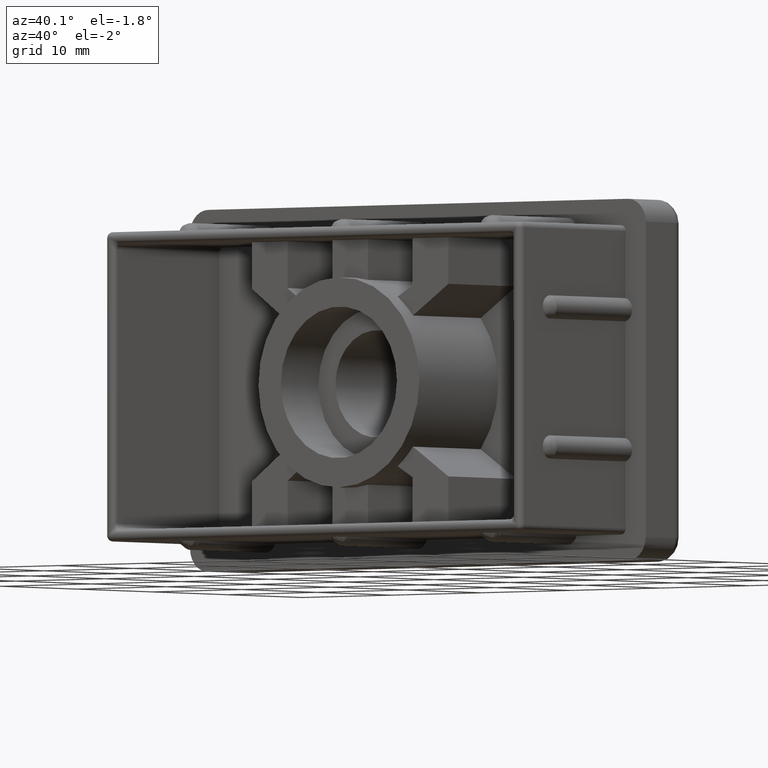
[diagram: clean part render]
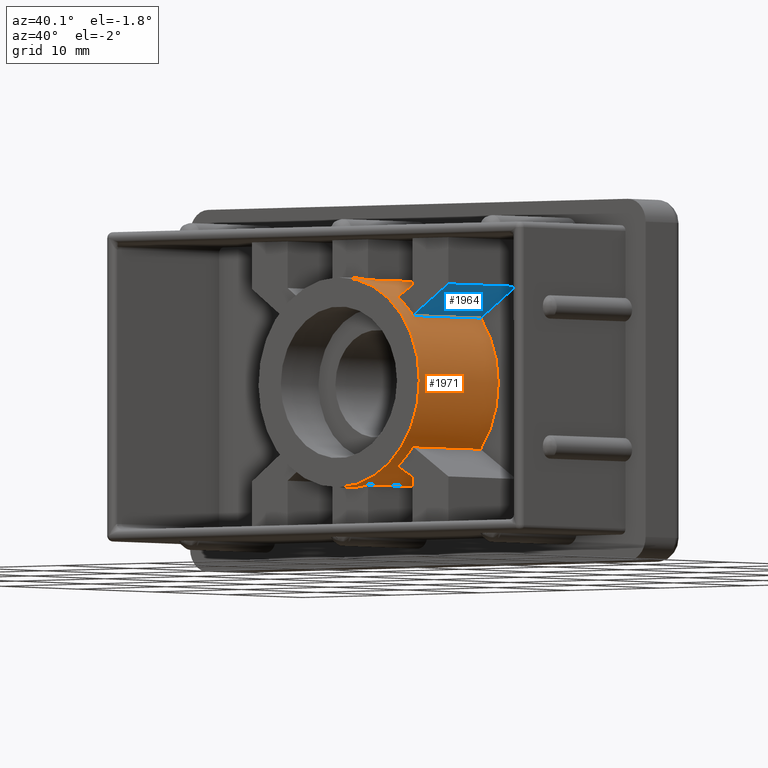
[diagram: same view with the hole feature highlighted: cylindrical wall and planar end face, labeled with their STEP entity ids]
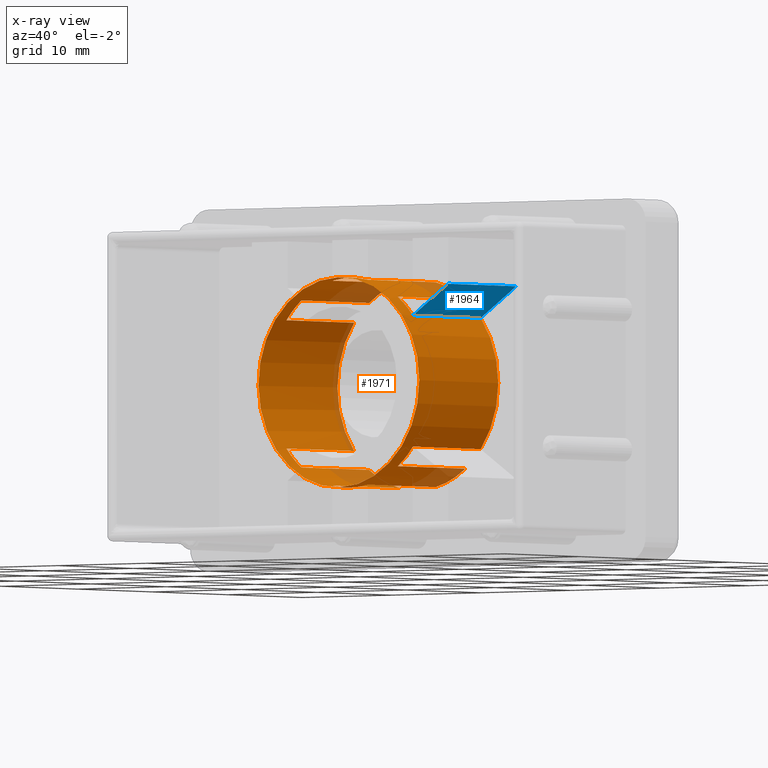
[diagram: x-ray of the same camera — body ghosted, the hole faces saturated]
A machine part, auxiliary view. The highlighted faces form one hole feature of diameter 18 mm: the cylindrical wall (entity #1971, orange) and its adjacent planar end face (entity #1964, blue) — they share a circular edge in the B-rep.
The next image is the same camera in x-ray (body ghosted, the hole faces saturated) — the bore reads through the body.
Wall:
#20=FACE_BOUND('',#726,.T.);
#252=LINE('',#3997,#428);
#254=LINE('',#4001,#430);
#256=LINE('',#4005,#432);
#259=LINE('',#4012,#435);
#266=LINE('',#4028,#442);
#273=LINE('',#4042,#449);
#281=LINE('',#4063,#457);
#284=LINE('',#4069,#460);
#287=LINE('',#4077,#463);
#291=LINE('',#4085,#467);
#297=LINE('',#4098,#473);
#301=LINE('',#4107,#477);
#428=VECTOR('',#2514,9.);
#430=VECTOR('',#2518,9.);
#432=VECTOR('',#2522,9.);
#435=VECTOR('',#2527,9.);
#442=VECTOR('',#2544,9.);
#449=VECTOR('',#2553,9.);
#457=VECTOR('',#2579,9.);
#460=VECTOR('',#2584,9.);
#463=VECTOR('',#2593,9.);
#467=VECTOR('',#2599,9.);
#473=VECTOR('',#2615,9.);
#477=VECTOR('',#2621,9.);
#514=CYLINDRICAL_SURFACE('',#2138,9.);
#615=FACE_OUTER_BOUND('',#725,.T.);
#725=EDGE_LOOP('',(#1825,#1826,#1827,#1828,#1829,#1830,#1831,#1832,#1833,
#1834,#1835,#1836,#1837,#1838,#1839,#1840,#1841,#1842,#1843,#1844,#1845,
#1846,#1847,#1848));
#726=EDGE_LOOP('',(#1849));
#763=CIRCLE('',#2036,9.);
#798=CIRCLE('',#2099,9.);
#799=CIRCLE('',#2105,9.);
#800=CIRCLE('',#2111,9.);
#801=CIRCLE('',#2115,9.);
#802=CIRCLE('',#2117,9.);
#803=CIRCLE('',#2121,9.);
#804=CIRCLE('',#2125,9.);
#805=CIRCLE('',#2131,9.);
#806=CIRCLE('',#2135,9.);
#807=CIRCLE('',#2137,9.);
#808=CIRCLE('',#2139,9.);
#809=CIRCLE('',#2140,9.);
#916=VERTEX_POINT('',#3194);
#917=VERTEX_POINT('',#3196);
#965=VERTEX_POINT('',#3990);
#966=VERTEX_POINT('',#3991);
#967=VERTEX_POINT('',#3996);
#968=VERTEX_POINT('',#4000);
#969=VERTEX_POINT('',#4004);
#971=VERTEX_POINT('',#4010);
#972=VERTEX_POINT('',#4011);
#975=VERTEX_POINT('',#4026);
#976=VERTEX_POINT('',#4027);
#980=VERTEX_POINT('',#4036);
#982=VERTEX_POINT('',#4040);
#984=VERTEX_POINT('',#4055);
#985=VERTEX_POINT('',#4061);
#986=VERTEX_POINT('',#4062);
#987=VERTEX_POINT('',#4067);
#988=VERTEX_POINT('',#4068);
#989=VERTEX_POINT('',#4075);
#990=VERTEX_POINT('',#4076);
#993=VERTEX_POINT('',#4084);
#995=VERTEX_POINT('',#4097);
#997=VERTEX_POINT('',#4103);
#999=VERTEX_POINT('',#4106);
#1001=VERTEX_POINT('',#4124);
#1135=EDGE_CURVE('',#917,#916,#763,.T.);
#1221=EDGE_CURVE('',#965,#966,#798,.T.);
#1224=EDGE_CURVE('',#967,#965,#252,.T.);
#1226=EDGE_CURVE('',#966,#968,#254,.T.);
#1228=EDGE_CURVE('',#916,#969,#256,.T.);
#1231=EDGE_CURVE('',#971,#972,#259,.T.);
#1235=EDGE_CURVE('',#969,#971,#799,.T.);
#1239=EDGE_CURVE('',#975,#976,#266,.T.);
#1246=EDGE_CURVE('',#980,#982,#273,.T.);
#1247=EDGE_CURVE('',#982,#975,#800,.T.);
#1255=EDGE_CURVE('',#976,#984,#801,.T.);
#1256=EDGE_CURVE('',#972,#967,#802,.T.);
#1257=EDGE_CURVE('',#985,#986,#281,.T.);
#1260=EDGE_CURVE('',#987,#988,#284,.T.);
#1263=EDGE_CURVE('',#986,#987,#803,.T.);
#1264=EDGE_CURVE('',#989,#990,#287,.T.);
#1268=EDGE_CURVE('',#993,#917,#291,.T.);
#1271=EDGE_CURVE('',#990,#993,#804,.T.);
#1275=EDGE_CURVE('',#984,#995,#297,.T.);
#1279=EDGE_CURVE('',#999,#997,#301,.T.);
#1282=EDGE_CURVE('',#995,#999,#805,.T.);
#1286=EDGE_CURVE('',#968,#980,#806,.T.);
#1287=EDGE_CURVE('',#988,#989,#807,.T.);
#1288=EDGE_CURVE('',#997,#985,#808,.T.);
#1289=EDGE_CURVE('',#1001,#1001,#809,.T.);
#1825=ORIENTED_EDGE('',*,*,#1226,.T.);
#1826=ORIENTED_EDGE('',*,*,#1286,.T.);
#1827=ORIENTED_EDGE('',*,*,#1246,.T.);
#1828=ORIENTED_EDGE('',*,*,#1247,.T.);
#1829=ORIENTED_EDGE('',*,*,#1239,.T.);
#1830=ORIENTED_EDGE('',*,*,#1255,.T.);
#1831=ORIENTED_EDGE('',*,*,#1275,.T.);
#1832=ORIENTED_EDGE('',*,*,#1282,.T.);
#1833=ORIENTED_EDGE('',*,*,#1279,.T.);
#1834=ORIENTED_EDGE('',*,*,#1288,.T.);
#1835=ORIENTED_EDGE('',*,*,#1257,.T.);
#1836=ORIENTED_EDGE('',*,*,#1263,.T.);
#1837=ORIENTED_EDGE('',*,*,#1260,.T.);
#1838=ORIENTED_EDGE('',*,*,#1287,.T.);
#1839=ORIENTED_EDGE('',*,*,#1264,.T.);
#1840=ORIENTED_EDGE('',*,*,#1271,.T.);
#1841=ORIENTED_EDGE('',*,*,#1268,.T.);
#1842=ORIENTED_EDGE('',*,*,#1135,.T.);
#1843=ORIENTED_EDGE('',*,*,#1228,.T.);
#1844=ORIENTED_EDGE('',*,*,#1235,.T.);
#1845=ORIENTED_EDGE('',*,*,#1231,.T.);
#1846=ORIENTED_EDGE('',*,*,#1256,.T.);
#1847=ORIENTED_EDGE('',*,*,#1224,.T.);
#1848=ORIENTED_EDGE('',*,*,#1221,.T.);
#1849=ORIENTED_EDGE('',*,*,#1289,.T.);
#1971=ADVANCED_FACE('',(#615,#20),#514,.T.);
#2036=AXIS2_PLACEMENT_3D('',#3197,#2347,#2348);
#2099=AXIS2_PLACEMENT_3D('',#3992,#2508,#2509);
#2105=AXIS2_PLACEMENT_3D('',#4019,#2533,#2534);
#2111=AXIS2_PLACEMENT_3D('',#4044,#2556,#2557);
#2115=AXIS2_PLACEMENT_3D('',#4057,#2571,#2572);
#2117=AXIS2_PLACEMENT_3D('',#4059,#2575,#2576);
#2121=AXIS2_PLACEMENT_3D('',#4073,#2589,#2590);
#2125=AXIS2_PLACEMENT_3D('',#4090,#2604,#2605);
#2131=AXIS2_PLACEMENT_3D('',#4112,#2626,#2627);
#2135=AXIS2_PLACEMENT_3D('',#4119,#2637,#2638);
#2137=AXIS2_PLACEMENT_3D('',#4121,#2641,#2642);
#2138=AXIS2_PLACEMENT_3D('',#4122,#2643,#2644);
#2139=AXIS2_PLACEMENT_3D('',#4123,#2645,#2646);
#2140=AXIS2_PLACEMENT_3D('',#4125,#2647,#2648);
#2347=DIRECTION('center_axis',(0.,-1.,0.));
#2348=DIRECTION('ref_axis',(-1.,0.,0.));
#2508=DIRECTION('center_axis',(0.,-1.,0.));
#2509=DIRECTION('ref_axis',(-1.,0.,0.));
#2514=DIRECTION('',(0.,-1.,0.));
#2518=DIRECTION('',(0.,1.,0.));
#2522=DIRECTION('',(0.,-1.,0.));
#2527=DIRECTION('',(0.,1.,0.));
#2533=DIRECTION('center_axis',(0.,-1.,0.));
#2534=DIRECTION('ref_axis',(-1.,0.,0.));
#2544=DIRECTION('',(0.,1.,0.));
#2553=DIRECTION('',(0.,-1.,0.));
#2556=DIRECTION('center_axis',(0.,-1.,0.));
#2557=DIRECTION('ref_axis',(-1.,0.,0.));
#2571=DIRECTION('center_axis',(0.,-1.,0.));
#2572=DIRECTION('ref_axis',(-1.,0.,0.));
#2575=DIRECTION('center_axis',(0.,-1.,0.));
#2576=DIRECTION('ref_axis',(-1.,0.,0.));
#2579=DIRECTION('',(0.,-1.,0.));
#2584=DIRECTION('',(0.,1.,0.));
#2589=DIRECTION('center_axis',(0.,-1.,0.));
#2590=DIRECTION('ref_axis',(-1.,0.,0.));
#2593=DIRECTION('',(0.,-1.,0.));
#2599=DIRECTION('',(0.,1.,0.));
#2604=DIRECTION('center_axis',(0.,-1.,0.));
#2605=DIRECTION('ref_axis',(-1.,0.,0.));
#2615=DIRECTION('',(0.,-1.,0.));
#2621=DIRECTION('',(0.,1.,0.));
#2626=DIRECTION('center_axis',(0.,-1.,0.));
#2627=DIRECTION('ref_axis',(-1.,0.,0.));
#2637=DIRECTION('center_axis',(0.,-1.,0.));
#2638=DIRECTION('ref_axis',(-1.,0.,0.));
#2641=DIRECTION('center_axis',(0.,-1.,0.));
#2642=DIRECTION('ref_axis',(-1.,0.,0.));
#2643=DIRECTION('center_axis',(0.,1.,0.));
#2644=DIRECTION('ref_axis',(-1.,0.,0.));
#2645=DIRECTION('center_axis',(0.,-1.,0.));
#2646=DIRECTION('ref_axis',(-1.,0.,0.));
#2647=DIRECTION('center_axis',(0.,1.,0.));
#2648=DIRECTION('ref_axis',(-1.,0.,0.));
#3194=CARTESIAN_POINT('',(16.1208311818235,14.,-18.743173214267));
#3196=CARTESIAN_POINT('',(16.1208311818235,14.,-7.75682678573301));
#3197=CARTESIAN_POINT('Origin',(23.25,14.,-13.25));
#3990=CARTESIAN_POINT('',(21.25,5.,-22.0249643873921));
#3991=CARTESIAN_POINT('',(25.25,5.,-22.0249643873921));
#3992=CARTESIAN_POINT('Origin',(23.25,5.,-13.25));
#3996=CARTESIAN_POINT('',(21.25,14.,-22.0249643873921));
#3997=CARTESIAN_POINT('',(21.25,0.,-22.0249643873921));
#4000=CARTESIAN_POINT('',(25.25,14.,-22.0249643873921));
#4001=CARTESIAN_POINT('',(25.25,0.,-22.0249643873921));
#4004=CARTESIAN_POINT('',(16.1208311818235,5.,-18.743173214267));
#4005=CARTESIAN_POINT('',(16.1208311818235,0.,-18.743173214267));
#4010=CARTESIAN_POINT('',(17.789048978354,5.,-20.4038810403293));
#4011=CARTESIAN_POINT('',(17.789048978354,14.,-20.4038810403293));
#4012=CARTESIAN_POINT('',(17.789048978354,0.,-20.4038810403293));
#4019=CARTESIAN_POINT('Origin',(23.25,5.,-13.25));
#4026=CARTESIAN_POINT('',(30.2812682841136,5.,-18.8679414661261));
#4027=CARTESIAN_POINT('',(30.2812682841136,14.,-18.8679414661261));
#4028=CARTESIAN_POINT('',(30.2812682841136,0.,-18.8679414661261));
#4036=CARTESIAN_POINT('',(28.5685464950367,14.,-20.5103762423261));
#4040=CARTESIAN_POINT('',(28.5685464950367,5.,-20.5103762423261));
#4042=CARTESIAN_POINT('',(28.5685464950367,0.,-20.5103762423261));
#4044=CARTESIAN_POINT('Origin',(23.25,5.,-13.25));
#4055=CARTESIAN_POINT('',(30.2812682841136,14.,-7.63205853387392));
#4057=CARTESIAN_POINT('Origin',(23.25,14.,-13.25));
#4059=CARTESIAN_POINT('Origin',(23.25,14.,-13.25));
#4061=CARTESIAN_POINT('',(25.25,14.,-4.47503561260787));
#4062=CARTESIAN_POINT('',(25.25,5.,-4.47503561260787));
#4063=CARTESIAN_POINT('',(25.25,0.,-4.47503561260787));
#4067=CARTESIAN_POINT('',(21.25,5.,-4.47503561260787));
#4068=CARTESIAN_POINT('',(21.25,14.,-4.47503561260787));
#4069=CARTESIAN_POINT('',(21.25,0.,-4.47503561260787));
#4073=CARTESIAN_POINT('Origin',(23.25,5.,-13.25));
#4075=CARTESIAN_POINT('',(17.789048978354,14.,-6.09611895967068));
#4076=CARTESIAN_POINT('',(17.789048978354,5.,-6.09611895967068));
#4077=CARTESIAN_POINT('',(17.789048978354,0.,-6.09611895967068));
#4084=CARTESIAN_POINT('',(16.1208311818235,5.,-7.75682678573301));
#4085=CARTESIAN_POINT('',(16.1208311818235,0.,-7.75682678573301));
#4090=CARTESIAN_POINT('Origin',(23.25,5.,-13.25));
#4097=CARTESIAN_POINT('',(30.2812682841136,5.,-7.63205853387392));
#4098=CARTESIAN_POINT('',(30.2812682841136,0.,-7.63205853387392));
#4103=CARTESIAN_POINT('',(28.5685464950367,14.,-5.98962375767392));
#4106=CARTESIAN_POINT('',(28.5685464950367,5.,-5.98962375767392));
#4107=CARTESIAN_POINT('',(28.5685464950367,0.,-5.98962375767392));
#4112=CARTESIAN_POINT('Origin',(23.25,5.,-13.25));
#4119=CARTESIAN_POINT('Origin',(23.25,14.,-13.25));
#4121=CARTESIAN_POINT('Origin',(23.25,14.,-13.25));
#4122=CARTESIAN_POINT('Origin',(23.25,0.,-13.25));
#4123=CARTESIAN_POINT('Origin',(23.25,14.,-13.25));
#4124=CARTESIAN_POINT('',(32.25,3.5,-13.25));
#4125=CARTESIAN_POINT('Origin',(23.25,3.5,-13.25));
End face:
#97=PLANE('',#2128);
#280=LINE('',#4056,#456);
#297=LINE('',#4098,#473);
#298=LINE('',#4100,#474);
#299=LINE('',#4101,#475);
#456=VECTOR('',#2570,4.7622015453382);
#473=VECTOR('',#2615,9.);
#474=VECTOR('',#2616,9.);
#475=VECTOR('',#2617,4.7622015453382);
#608=FACE_OUTER_BOUND('',#718,.T.);
#718=EDGE_LOOP('',(#1793,#1794,#1795,#1796));
#983=VERTEX_POINT('',#4053);
#984=VERTEX_POINT('',#4055);
#995=VERTEX_POINT('',#4097);
#996=VERTEX_POINT('',#4099);
#1254=EDGE_CURVE('',#983,#984,#280,.T.);
#1275=EDGE_CURVE('',#984,#995,#297,.T.);
#1276=EDGE_CURVE('',#983,#996,#298,.T.);
#1277=EDGE_CURVE('',#995,#996,#299,.T.);
#1793=ORIENTED_EDGE('',*,*,#1275,.F.);
#1794=ORIENTED_EDGE('',*,*,#1254,.F.);
#1795=ORIENTED_EDGE('',*,*,#1276,.T.);
#1796=ORIENTED_EDGE('',*,*,#1277,.F.);
#1964=ADVANCED_FACE('',(#608),#97,.T.);
#2128=AXIS2_PLACEMENT_3D('',#4096,#2613,#2614);
#2570=DIRECTION('',(-0.833381720219612,0.,-0.552697845485036));
#2613=DIRECTION('center_axis',(0.552697845485036,0.,-0.833381720219612));
#2614=DIRECTION('ref_axis',(0.833381720219612,0.,0.552697845485036));
#2615=DIRECTION('',(0.,-1.,0.));
#2616=DIRECTION('',(0.,-1.,0.));
#2617=DIRECTION('',(0.833381720219612,0.,0.552697845485036));
#4053=CARTESIAN_POINT('',(34.25,14.,-4.99999999999999));
#4055=CARTESIAN_POINT('',(30.2812682841136,14.,-7.63205853387392));
#4056=CARTESIAN_POINT('',(26.2683379486128,14.,-10.2934295439416));
#4096=CARTESIAN_POINT('Origin',(29.7264702249477,14.,-7.99999999999999));
#4097=CARTESIAN_POINT('',(30.2812682841136,5.,-7.63205853387392));
#4098=CARTESIAN_POINT('',(30.2812682841136,0.,-7.63205853387392));
#4099=CARTESIAN_POINT('',(34.25,5.,-4.99999999999999));
#4100=CARTESIAN_POINT('',(34.25,14.,-4.99999999999999));
#4101=CARTESIAN_POINT('',(29.7264702249477,5.,-7.99999999999999));